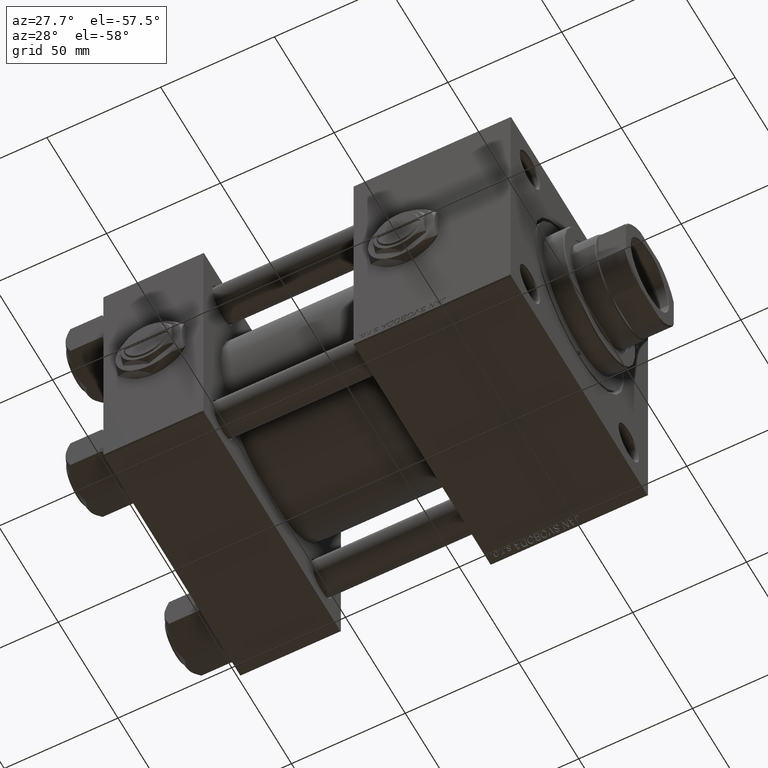
[diagram: clean part render]
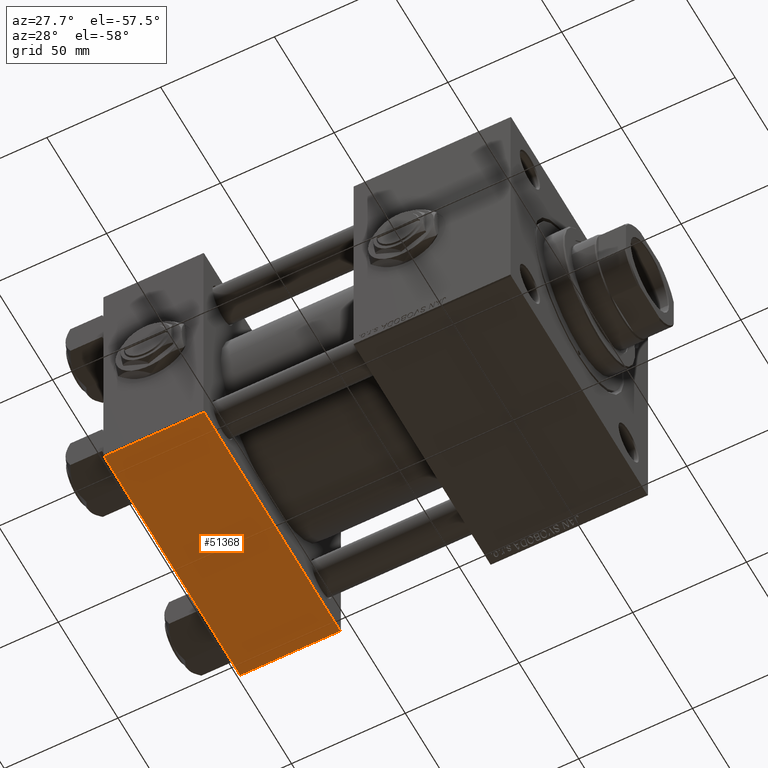
[diagram: same view with one face highlighted and labeled with its STEP entity id]
A machine part, auxiliary view. The second image highlights one B-rep face of the part: STEP entity #51368.
In plain terms, the highlighted planar face has unit normal (0, 0, -1).
Its self-contained STEP definition (entity closure, byte-faithful):
#447 = CARTESIAN_POINT ( 'NONE',  ( 44.00000000000000000, 57.00000000000002132, -57.49999999999999289 ) ) ;
#1211 = PLANE ( 'NONE',  #31717 ) ;
#3418 = VERTEX_POINT ( 'NONE', #11662 ) ;
#3758 = DIRECTION ( 'NONE',  ( 0.000000000000000000, -1.000000000000000000, -1.206764157201257045E-16 ) ) ;
#4146 = VECTOR ( 'NONE', #37105, 1000.000000000000000 ) ;
#5126 = ORIENTED_EDGE ( 'NONE', *, *, #40137, .T. ) ;
#7413 = CARTESIAN_POINT ( 'NONE',  ( 0.000000000000000000, -57.00000000000000711, -57.50000000000000711 ) ) ;
#8356 = EDGE_CURVE ( 'NONE', #3418, #18887, #32077, .T. ) ;
#9756 = FACE_OUTER_BOUND ( 'NONE', #52780, .T. ) ;
#11662 = CARTESIAN_POINT ( 'NONE',  ( 0.000000000000000000, 57.00000000000002132, -57.49999999999999289 ) ) ;
#13636 = DIRECTION ( 'NONE',  ( 0.000000000000000000, -1.000000000000000000, -1.206764157201257045E-16 ) ) ;
#15039 = CARTESIAN_POINT ( 'NONE',  ( 44.00000000000000000, -57.00000000000000711, -57.50000000000000711 ) ) ;
#18298 = DIRECTION ( 'NONE',  ( 0.000000000000000000, 1.000000000000000000, 1.206764157201257045E-16 ) ) ;
#18887 = VERTEX_POINT ( 'NONE', #23265 ) ;
#23265 = CARTESIAN_POINT ( 'NONE',  ( 0.000000000000000000, -57.00000000000000711, -57.50000000000000711 ) ) ;
#23727 = DIRECTION ( 'NONE',  ( -1.000000000000000000, 0.000000000000000000, 0.000000000000000000 ) ) ;
#29107 = CARTESIAN_POINT ( 'NONE',  ( 44.00000000000000000, 57.00000000000002132, -57.49999999999999289 ) ) ;
#29883 = EDGE_CURVE ( 'NONE', #49008, #34182, #37404, .T. ) ;
#31564 = CARTESIAN_POINT ( 'NONE',  ( 44.00000000000000000, 57.49999999999999289, -57.49999999999999289 ) ) ;
#31717 = AXIS2_PLACEMENT_3D ( 'NONE', #31564, #47881, #18298 ) ;
#32077 = LINE ( 'NONE', #43308, #46666 ) ;
#34182 = VERTEX_POINT ( 'NONE', #15039 ) ;
#37105 = DIRECTION ( 'NONE',  ( 1.000000000000000000, 0.000000000000000000, 0.000000000000000000 ) ) ;
#37134 = CARTESIAN_POINT ( 'NONE',  ( 44.00000000000000000, 57.49999999999999289, -57.49999999999999289 ) ) ;
#37404 = LINE ( 'NONE', #37134, #49972 ) ;
#39004 = ORIENTED_EDGE ( 'NONE', *, *, #41063, .T. ) ;
#40099 = ORIENTED_EDGE ( 'NONE', *, *, #29883, .T. ) ;
#40137 = EDGE_CURVE ( 'NONE', #34182, #18887, #44289, .T. ) ;
#40826 = VECTOR ( 'NONE', #23727, 1000.000000000000000 ) ;
#41063 = EDGE_CURVE ( 'NONE', #3418, #49008, #49150, .T. ) ;
#43308 = CARTESIAN_POINT ( 'NONE',  ( 0.000000000000000000, 57.49999999999999289, -57.49999999999999289 ) ) ;
#44289 = LINE ( 'NONE', #7413, #40826 ) ;
#46666 = VECTOR ( 'NONE', #3758, 1000.000000000000000 ) ;
#47881 = DIRECTION ( 'NONE',  ( 0.000000000000000000, 1.206764157201257045E-16, -1.000000000000000000 ) ) ;
#49008 = VERTEX_POINT ( 'NONE', #447 ) ;
#49150 = LINE ( 'NONE', #29107, #4146 ) ;
#49972 = VECTOR ( 'NONE', #13636, 1000.000000000000000 ) ;
#50536 = ORIENTED_EDGE ( 'NONE', *, *, #8356, .F. ) ;
#51368 = ADVANCED_FACE ( 'NONE', ( #9756 ), #1211, .T. ) ;
#52780 = EDGE_LOOP ( 'NONE', ( #50536, #39004, #40099, #5126 ) ) ;